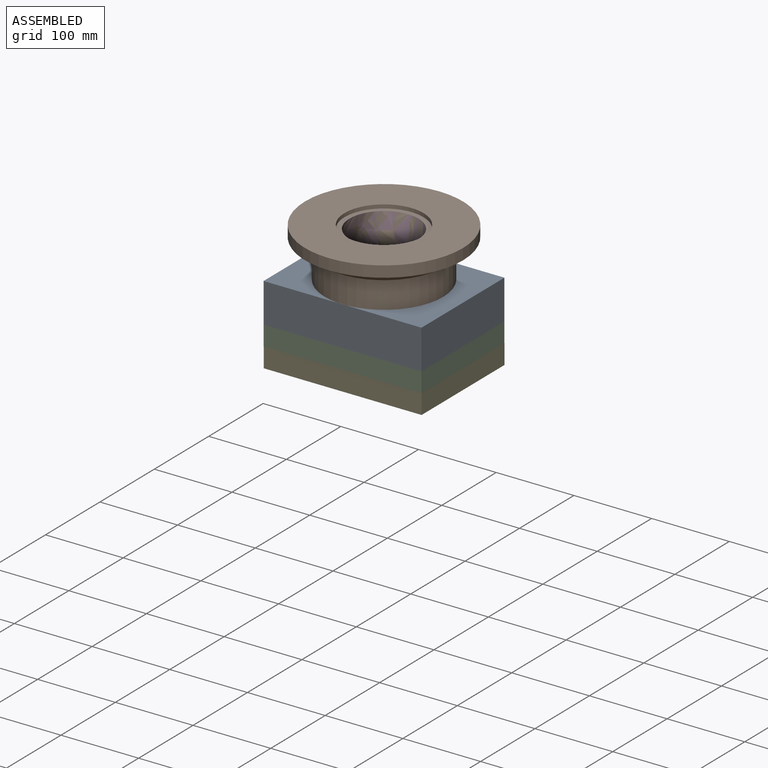
[diagram: assembled view]
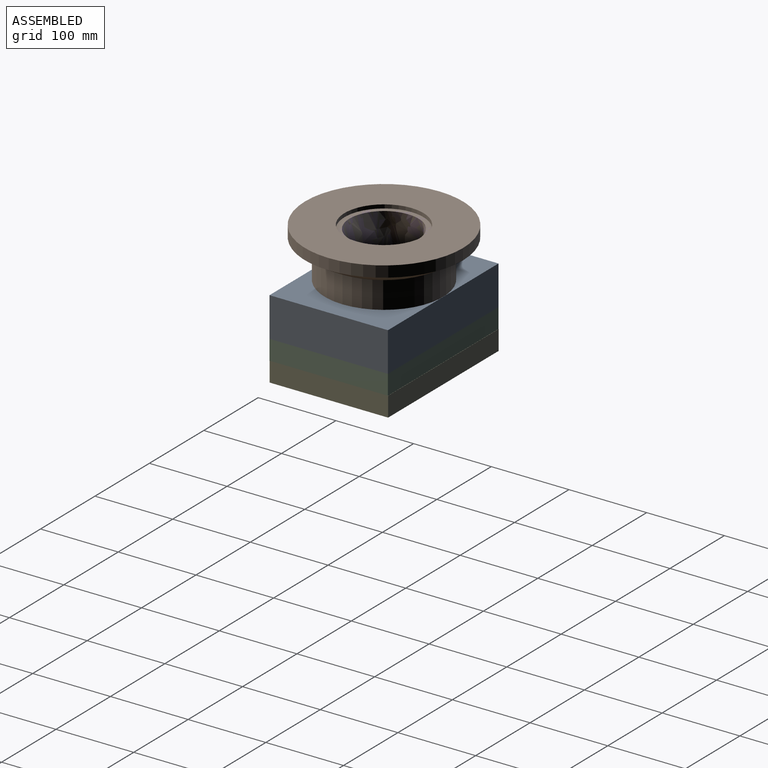
[diagram: assembled view, second angle]
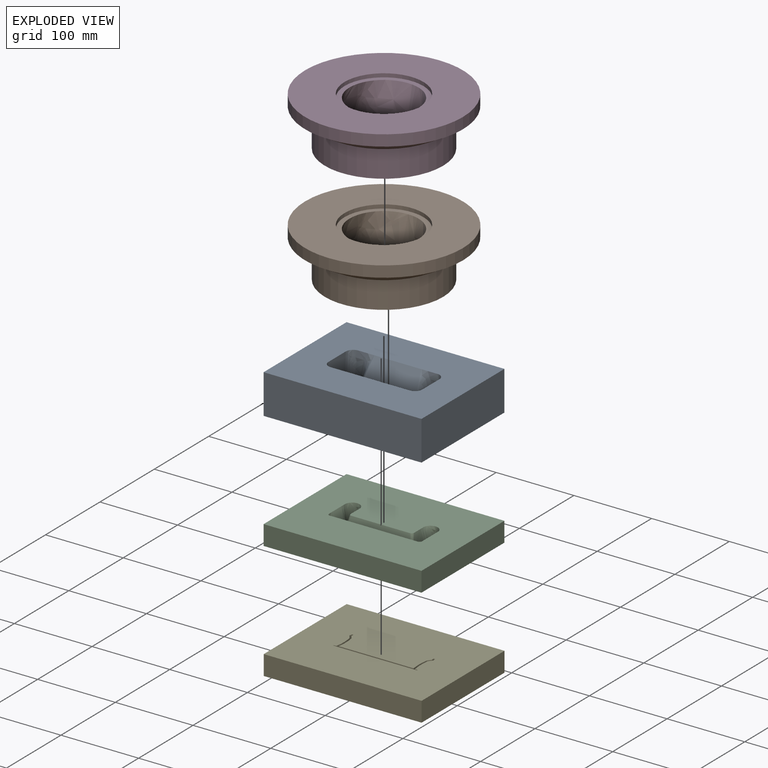
[diagram: exploded view]
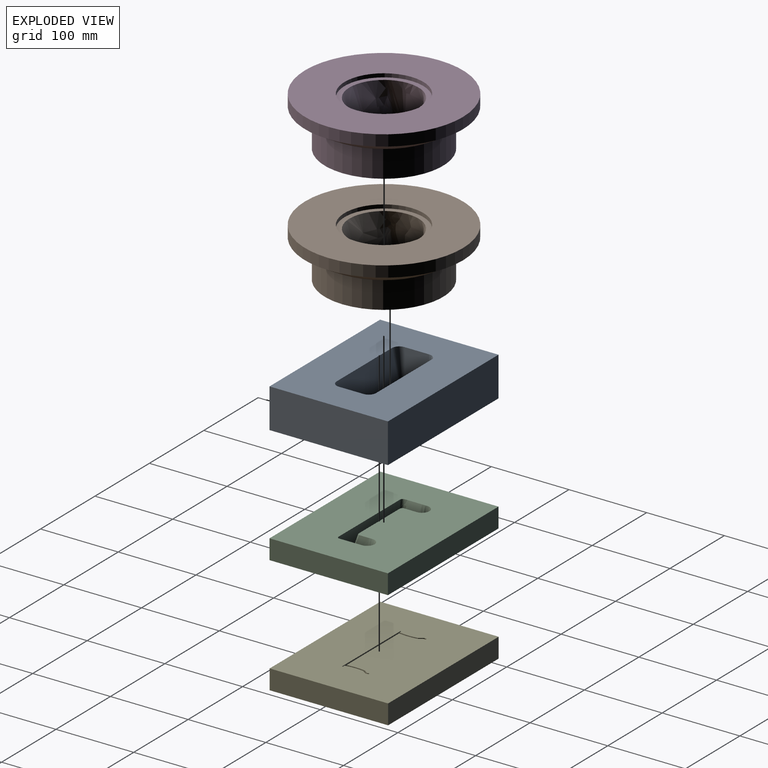
[diagram: exploded view, second angle]
ASSEMBLY  parts=5 mates=3
PART A: 14 faces, bbox 203.9x153.1x51.5 mm
  f0: plane 203.9x153.1mm, normal (0,0,-1), area 28410.4mm2, adj f1,f2,f3,f4,f6,f7,f8,f9
  f1: plane 203.2x50.8mm, normal (0,-1,0), area 10322.6mm2, adj f0,f2,f4,f5
  f2: plane 152.4x50.8mm, normal (1,0,0), area 7741.9mm2, adj f0,f1,f3,f5
  f3: plane 203.2x50.8mm, normal (0,1,0), area 10322.6mm2, adj f0,f2,f4,f5
  f4: plane 152.4x50.8mm, normal (-1,0,0), area 7741.9mm2, adj f0,f1,f3,f5
  f5: plane 203.91x153.11mm, normal (0,0,1), area 24916.7mm2, adj f1,f2,f3,f4,f6,f7,f8,f9
  f6: plane 75.37x50.8mm, normal (0,-0.85,0.53), area 4065.9mm2, adj f0,f5,f7,f13
  f7: bspline ~72.89x50.8mm, area 2102.3mm2, adj f0,f5,f6,f8
  f8: plane 50.8x31.75mm, normal (1,0,0.01), area 1548.8mm2, adj f0,f5,f7,f9
  f9: bspline ~79.24x50.8mm, area 507.7mm2, adj f0,f5,f8,f10
  f10: plane 113.47x50.8mm, normal (0,0.99,0.13), area 5508.2mm2, adj f0,f5,f9,f11
  f11: bspline ~79.24x50.8mm, area 507.7mm2, adj f0,f5,f10,f12
  f12: plane 50.8x31.75mm, normal (-1,0,0.01), area 1548.8mm2, adj f0,f5,f11,f13
  f13: bspline ~72.89x50.8mm, area 2102.3mm2, adj f0,f5,f6,f12
PART B: 8 faces, bbox 204.3x204.3x64.6 mm
  f0: plane 153.51x153.51mm, normal (0,0,-1), area 12190.5mm2, adj f4,f7
  f1: plane 203.2x203.2mm, normal (0,0,1), area 24305.7mm2, adj f2,f5
  f2: cylinder r=101.6mm len=203.2mm, axis (0,0,-1), area 9112.6mm2, adj f1,f3
  f3: cone r=101.6mm half-angle=60deg, axis (0,0,1), area 16383mm2, adj f2,f4
  f4: cylinder r=76.2mm len=152.4mm, axis (0,0,-1), area 16546.2mm2, adj f0,f3
  f5: cylinder r=50.85mm len=101.7mm, axis (0,0,1), area 1517.6mm2, adj f1,f6
  f6: plane 102.37x102.37mm, normal (0,0,1), area 1916.5mm2, adj f5,f7
  f7: bspline ~120.65x88.9mm, area 17871.7mm2, adj f0,f6
PART C: 28 faces, bbox 203.5x152.7x25.7 mm
  f0: plane 203.49x152.69mm, normal (0,0,-1), area 29828.3mm2, adj f1,f2,f3,f4,f6,f7,f8,f9
  f1: plane 203.2x25.4mm, normal (0,-1,0), area 5161.3mm2, adj f0,f2,f4,f5
  f2: plane 152.4x25.4mm, normal (1,0,0), area 3871mm2, adj f0,f1,f3,f5
  f3: plane 203.2x25.4mm, normal (0,1,0), area 5161.3mm2, adj f0,f2,f4,f5
  f4: plane 152.4x25.4mm, normal (-1,0,0), area 3871mm2, adj f0,f1,f3,f5
  f5: plane 203.43x152.63mm, normal (0,0,1), area 28410.5mm2, adj f1,f2,f3,f4,f6,f7,f8,f9
  f6: bspline ~25.4x20.7mm, area 434.9mm2, adj f0,f5,f7,f27
  f7: bspline ~25.4x8.91mm, area 121.6mm2, adj f0,f5,f6,f8
  f8: bspline ~25.4x8.91mm, area 102mm2, adj f0,f5,f7,f9
  f9: bspline ~25.4x14.95mm, area 344.1mm2, adj f0,f5,f8,f10
  f10: bspline ~25.4x5.93mm, area 106.6mm2, adj f0,f5,f9,f11
  f11: bspline ~25.4x4.64mm, area 78.4mm2, adj f0,f5,f10,f12
  f12: bspline ~25.4x7.56mm, area 116.9mm2, adj f0,f5,f11,f13
  f13: bspline ~25.4x18.59mm, area 469.8mm2, adj f0,f5,f12,f14
  f14: bspline ~78.82x25.4mm, area 296.4mm2, adj f0,f5,f13,f15
  f15: plane 113.47x25.4mm, normal (0,1,0), area 2809.6mm2, adj f0,f5,f14,f16
  f16: bspline ~78.82x25.4mm, area 296.4mm2, adj f0,f5,f15,f17
  f17: bspline ~25.4x18.59mm, area 469.8mm2, adj f0,f5,f16,f18
  f18: bspline ~25.4x7.56mm, area 116.9mm2, adj f0,f5,f17,f19
  f19: bspline ~25.4x4.64mm, area 78.4mm2, adj f0,f5,f18,f20
  f20: bspline ~25.4x5.93mm, area 106.6mm2, adj f0,f5,f19,f21
  f21: bspline ~25.4x14.95mm, area 344.1mm2, adj f0,f5,f20,f22
  f22: bspline ~25.4x8.91mm, area 102mm2, adj f0,f5,f21,f23
  f23: bspline ~25.4x8.91mm, area 121.6mm2, adj f0,f5,f22,f24
  f24: bspline ~25.4x20.7mm, area 434.9mm2, adj f0,f5,f23,f25
  f25: bspline ~60.25x25.4mm, area 101.3mm2, adj f0,f5,f24,f26
  f26: plane 87.97x25.4mm, normal (0,-0.97,0.24), area 2138.2mm2, adj f0,f5,f25,f27
  f27: bspline ~60.25x25.4mm, area 101.3mm2, adj f0,f5,f6,f26
PART D: 8 faces, bbox 204.3x204.3x64.6 mm
  f0: plane 153.51x153.51mm, normal (0,0,-1), area 12190.5mm2, adj f4,f7
  f1: plane 203.2x203.2mm, normal (0,0,1), area 24305.7mm2, adj f2,f5
  f2: cylinder r=101.6mm len=203.2mm, axis (0,0,-1), area 9112.6mm2, adj f1,f3
  f3: cone r=101.6mm half-angle=60deg, axis (0,0,1), area 16383mm2, adj f2,f4
  f4: cylinder r=76.2mm len=152.4mm, axis (0,0,-1), area 16546.2mm2, adj f0,f3
  f5: cylinder r=50.85mm len=101.7mm, axis (0,0,1), area 1517.6mm2, adj f1,f6
  f6: plane 102.37x102.37mm, normal (0,0,1), area 1916.5mm2, adj f5,f7
  f7: bspline ~120.65x88.9mm, area 17814.3mm2, adj f0,f6
PART E: 46 faces, bbox 203.3x152.5x25.5 mm
  f0: plane 203.2x152.4mm, normal (0,0,-1), area 30606.7mm2, adj f1,f2,f3,f4,f6,f7,f8,f9
  f1: plane 203.2x25.4mm, normal (0,-1,0), area 5161.3mm2, adj f0,f2,f4,f5
  f2: plane 152.4x25.4mm, normal (1,0,0), area 3871mm2, adj f0,f1,f3,f5
  f3: plane 203.2x25.4mm, normal (0,1,0), area 5161.3mm2, adj f0,f2,f4,f5
  f4: plane 152.4x25.4mm, normal (-1,0,0), area 3871mm2, adj f0,f1,f3,f5
  f5: plane 203.31x152.51mm, normal (0,0,1), area 30615.2mm2, adj f1,f2,f3,f4,f6,f7,f8,f9
  f6: bspline ~25.4x0.45mm, area 15.2mm2, adj f0,f5,f7,f45
  f7: plane 25.4x1.91mm, normal (0.98,0.21,0), area 49.6mm2, adj f0,f5,f6,f8
  f8: bspline ~25.4x0.76mm, area 20.3mm2, adj f0,f5,f7,f9
  f9: plane 25.4x4.76mm, normal (0.82,-0.57,0), area 147.5mm2, adj f0,f5,f8,f10
  f10: cylinder r=0.98mm len=25.4mm, axis (0,0,1), area 10.7mm2, adj f0,f5,f9,f11
  f11: cylinder r=67.79mm len=25.4mm, axis (0,0,1), area 522mm2, adj f0,f5,f10,f12
  f12: bspline ~25.4x2.71mm, area 95.6mm2, adj f0,f5,f11,f13
  f13: bspline ~25.4x1.31mm, area 33.6mm2, adj f0,f5,f12,f14
  f14: plane 96.59x25.4mm, normal (0,-1,0), area 2453.3mm2, adj f0,f5,f13,f15
  f15: bspline ~25.4x1.31mm, area 33.6mm2, adj f0,f5,f14,f16
  f16: bspline ~25.4x2.71mm, area 95.6mm2, adj f0,f5,f15,f17
  f17: cone r=67.79mm half-angle=0deg, axis (0,0,1), area 522mm2, adj f0,f5,f16,f18
  f18: cylinder r=0.98mm len=25.4mm, axis (0,0,1), area 10.7mm2, adj f0,f5,f17,f19
  f19: plane 25.4x4.76mm, normal (-0.82,-0.57,0), area 147.5mm2, adj f0,f5,f18,f20
  f20: cylinder r=0.98mm len=25.4mm, axis (0,0,-1), area 20.3mm2, adj f0,f5,f19,f21
  f21: plane 25.4x1.91mm, normal (-0.98,0.21,0), area 49.6mm2, adj f0,f5,f20,f22
  f22: cylinder r=0.38mm len=25.4mm, axis (0,0,1), area 15.2mm2, adj f0,f5,f21,f23
  f23: plane 25.4x1.27mm, normal (-0.21,-0.98,0), area 32.9mm2, adj f0,f5,f22,f24
  f24: cylinder r=0.38mm len=25.4mm, axis (0,0,1), area 15.2mm2, adj f0,f5,f23,f25
  f25: plane 25.4x2.85mm, normal (0.98,-0.21,0), area 74mm2, adj f0,f5,f24,f26
  f26: cylinder r=0.83mm len=25.4mm, axis (0,0,1), area 17.2mm2, adj f0,f5,f25,f27
  f27: plane 25.4x5.23mm, normal (0.82,0.57,0), area 162.2mm2, adj f0,f5,f26,f28
  f28: cylinder r=0.64mm len=25.4mm, axis (0,0,-1), area 7.1mm2, adj f0,f5,f27,f29
  f29: cylinder r=65.73mm len=25.4mm, axis (0,0,-1), area 606.2mm2, adj f0,f5,f28,f30
  f30: plane 25.4x3.11mm, normal (0,-1,0), area 78.9mm2, adj f0,f5,f29,f31
  f31: cylinder r=0.23mm len=25.4mm, axis (0,0,1), area 9.1mm2, adj f0,f5,f30,f32
  f32: plane 25.4x0.68mm, normal (1,0,0), area 17.3mm2, adj f0,f5,f31,f33
  f33: cylinder r=0.23mm len=25.4mm, axis (0,0,1), area 9.1mm2, adj f0,f5,f32,f34
  f34: plane 107.3x25.4mm, normal (0,1,0), area 2725.5mm2, adj f0,f5,f33,f35
  f35: cylinder r=0.23mm len=25.4mm, axis (0,0,1), area 9.1mm2, adj f0,f5,f34,f36
  f36: plane 25.4x0.68mm, normal (-1,0,0), area 17.3mm2, adj f0,f5,f35,f37
  f37: cylinder r=0.23mm len=25.4mm, axis (0,0,1), area 9.1mm2, adj f0,f5,f36,f38
  f38: plane 25.4x3.11mm, normal (0,-1,0), area 78.9mm2, adj f0,f5,f37,f39
  f39: cylinder r=65.73mm len=25.4mm, axis (0,0,-1), area 606.2mm2, adj f0,f5,f38,f40
  f40: cylinder r=0.64mm len=25.4mm, axis (0,0,-1), area 7.1mm2, adj f0,f5,f39,f41
  f41: plane 25.4x5.23mm, normal (-0.82,0.57,0), area 162.2mm2, adj f0,f5,f40,f42
  f42: cylinder r=0.83mm len=25.4mm, axis (0,0,1), area 17.2mm2, adj f0,f5,f41,f43
  f43: plane 25.4x2.85mm, normal (-0.98,-0.21,0), area 74mm2, adj f0,f5,f42,f44
  f44: cylinder r=0.38mm len=25.4mm, axis (0,0,1), area 15.2mm2, adj f0,f5,f43,f45
  f45: plane 25.4x1.27mm, normal (0.21,-0.98,0), area 32.9mm2, adj f0,f5,f6,f44
PLACE A t=(-1.84,10.82,72.05)mm
PLACE B t=(-1.84,10.82,122.85)mm
PLACE C t=(-1.84,10.82,46.65)mm
PLACE D t=(-1.84,10.82,122.85)mm
PLACE E t=(-1.84,11.04,21.25)mm
MATE fastened E.f5 <-> C.f0  axis (0,0,1) through (-1.84,11.14,46.65)mm
MATE fastened B.f2 <-> D.f2  axis (0,0,1) through (-1.84,10.82,186.35)mm
MATE fastened C.f5 <-> A.f0  axis (0,0,1) through (-1.84,-65.38,72.05)mm
